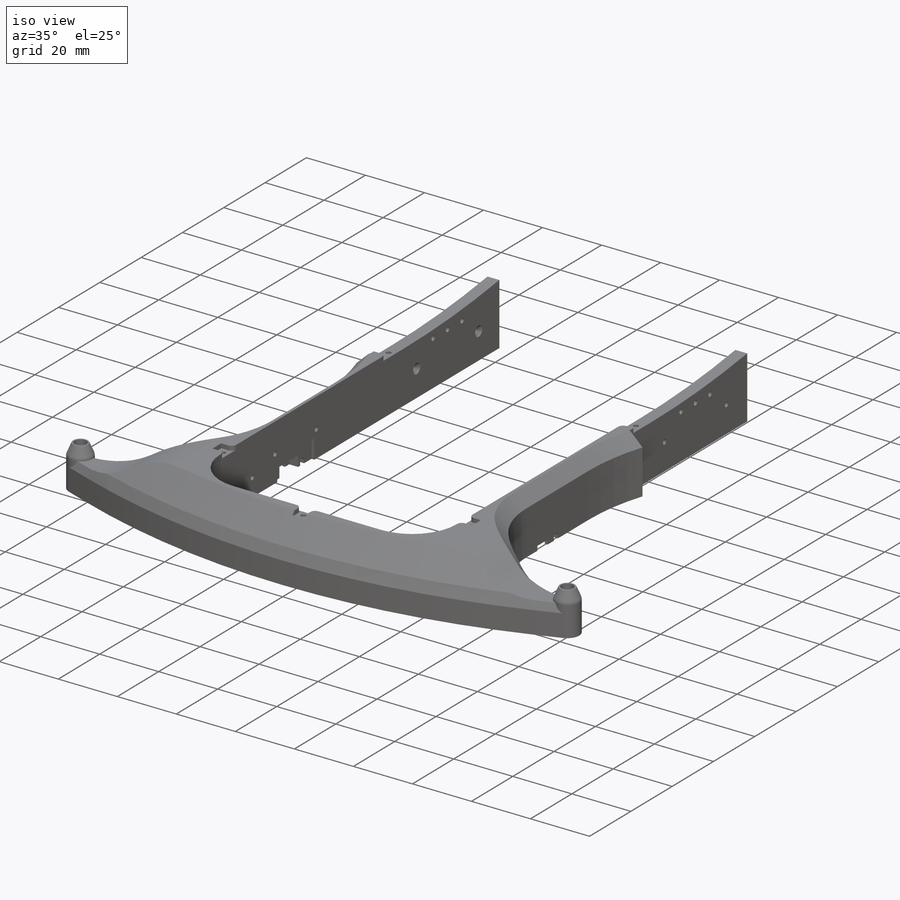
[diagram: iso view]
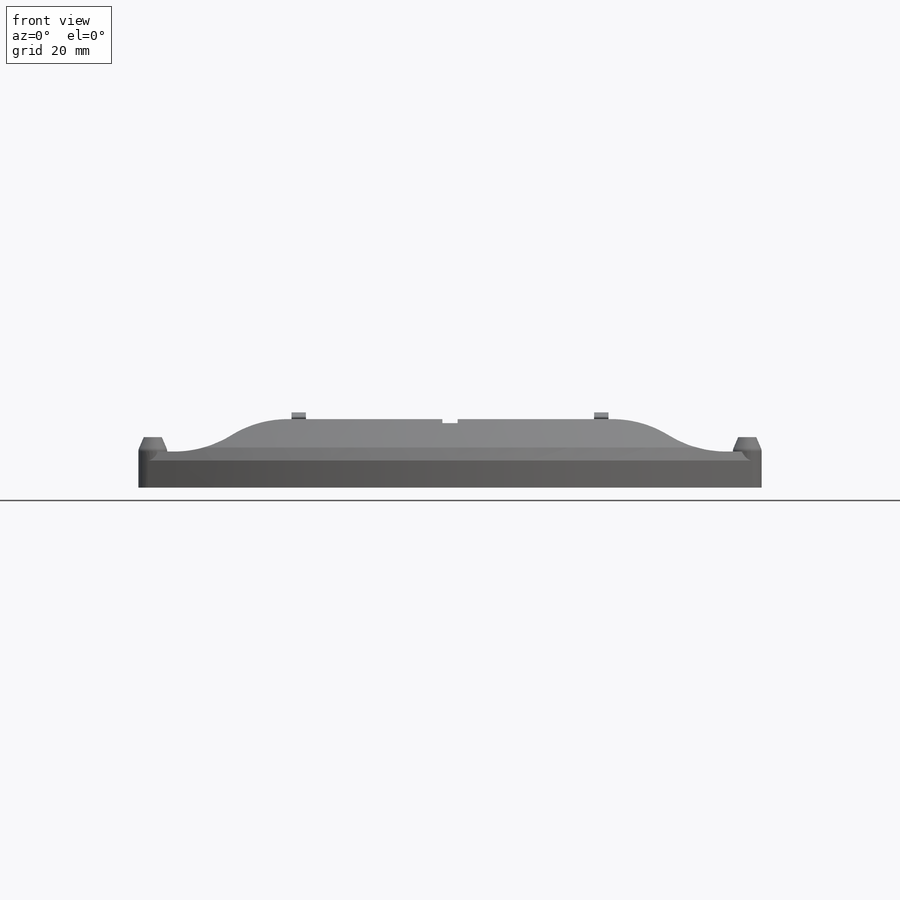
[diagram: front view]
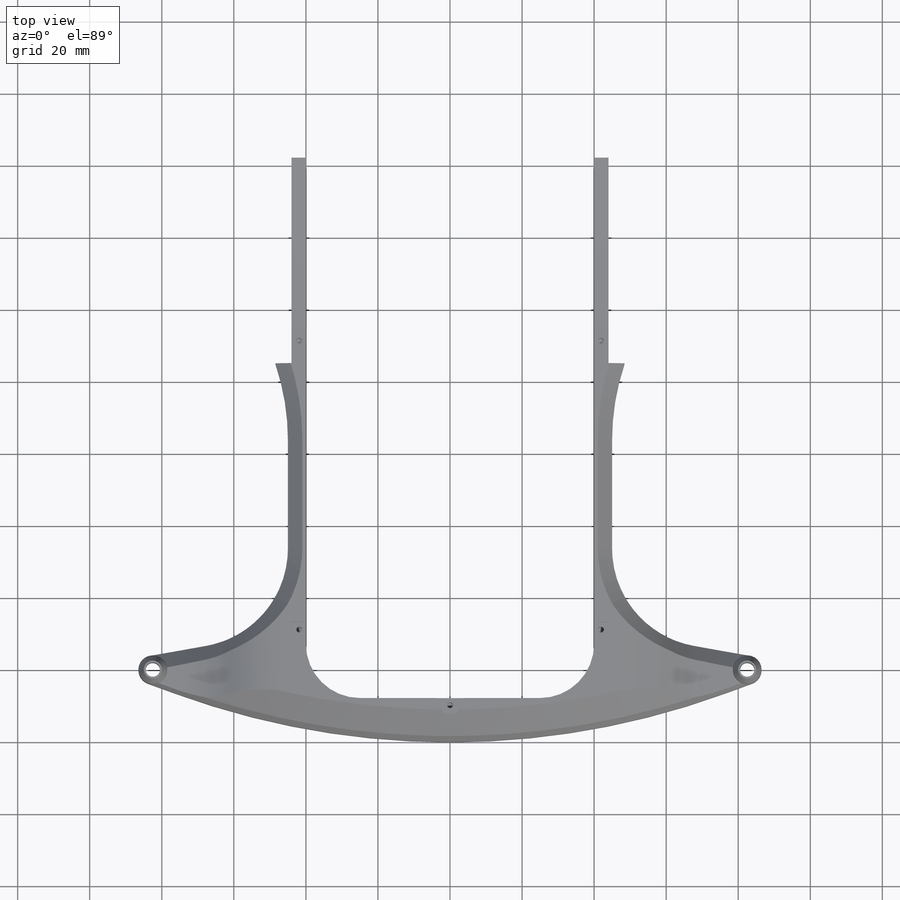
[diagram: top view]
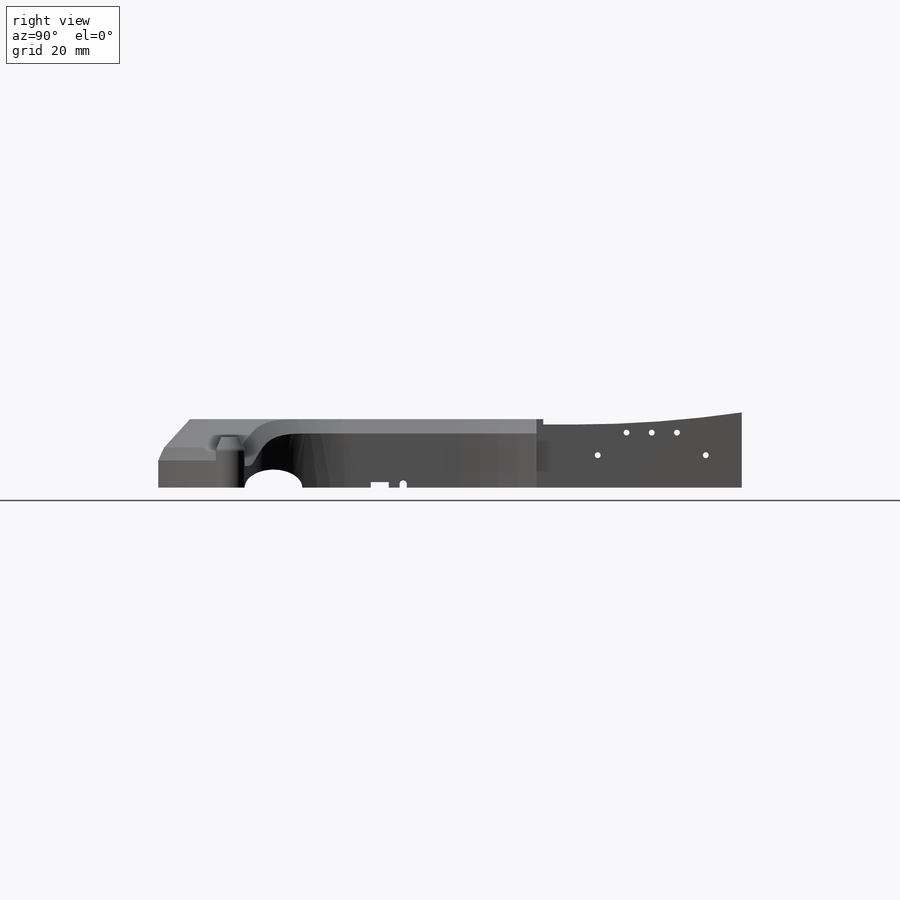
[diagram: right view]
SOLIDWORKS PART (.sldprt)
format: sldprt  version: not decoded by parser v0  size: 1,715,712 bytes
history: native  units: mm
features: sketch x22, cut_extrude x7, plane x4, extrude x4, hole x4, chamfer x3, material x1, sweep x1, cut_revolve x1, fillet x1, mirror x1 (+9 scaffold rows collapsed)
feature tree (58):
  scaffold x9  (default folders/planes/origin — collapsed)
  material  "PVC hart"
  plane  "Ebene vorne"
  plane  "Ebene oben"
  plane  "Ebene rechts"
  sketch  "Skizze5"  dims[c1.D1=4.0mm c1.D2=8.0mm c1.D6=5.0mm c1.D7=15.0mm c1.D13=15.0mm c1.D3=12.0mm c1.D4=12.0mm c1.D5=72.5mm c2.D3=66.0mm c2.D4=12.0mm c2.D6=10.0deg c3.D3=10.0deg c3.D4=20.0mm c3.D5=82.5mm c3.D6=75.0mm c3.D8=12.0mm c3.D9=~28.563975mm c4.D9=7.0deg c4.D10=45.0mm c4.D11=~14.659178mm c5.D11=10.0deg c5.D3=20.0deg c5.D6=~60.891529mm c6.D6=17.0deg c6.D9=75.0mm c6.D12=15.0mm c6.D13=~6.531382mm c6.D7=7.0mm c7.D6=37.5mm c7.D9=~58.244213mm c8.D9=17.0deg c8.D6=5.0mm]
  extrude  "Aufsatz-Linear austragen3"  Depth=19mm
  sketch  "Skizze10"  dims[D1=8.0mm]
  sketch  "Skizze11"  dims[D1=7.5mm D2=5.0mm D3=13.0mm]
  sweep  "Schnitt-Austragung3"
  sketch  "Skizze7"  dims[c1.D1=20.0mm c1.D2=10.0mm c1.D3=20.0mm c2.D1=20.0mm c2.D2=10.0mm c2.D3=20.0mm]
  cut_extrude  "Schnitt-Linear austragen1"  [1 undecoded]
  extrude  "Aufsatz-Linear austragen4"  [1 undecoded]
  sketch  "Skizze5<3>"  dims[D1=14.0mm]
  sketch  "Skizze13"  dims[c1.D4=2.0mm c1.D1=5.0mm c1.D2=10.0mm c1.D3=0.1mm c2.D4=~3.174926mm c3.D4=70.0deg]
  cut_revolve  "Schnitt-Rotation1"  Angle=360deg
  chamfer  "Fase1"  Distance=1.5mm Angle=70deg
  chamfer  "Fase4"  Distance=4mm Angle=45deg
  chamfer  "Fase5"  Distance=8.6mm
  sketch  "Skizze12"  dims[c1.D2=10.0mm c1.D1=15.0mm c1.D3=16.0mm c1.D4=10.0mm c2.D1=12.0mm]
  cut_extrude  "Schnitt-Linear austragen2"  [1 undecoded]
  sketch  "Skizze18"  dims[c1.D1=89.9mm c1.D2=3.0mm c1.D3=4.2mm c1.D4=2.1mm c1.D5=4.2mm c2.D2=19.0mm c2.D6=55.1mm c2.D1=55.1mm]
  cut_extrude  "Schnitt-Linear austragen3"  Depth=1.5mm
  fillet  "Verrundung1"  Radius=1.6mm
  sketch  "Skizze16"
  extrude  "Aufsatz-Linear austragen5"  [1 undecoded]
  sketch  "Skizze35"  dims[c1.D6=2.5mm c1.D7=~0.824122mm c1.D1=9.0mm c1.D2=7.0mm c1.D3=18.0mm c1.D4=13.0mm c1.D5=2.5mm c2.D7=2.0mm c2.D8=3.0mm c2.D9=5.0mm c2.D6=2.0mm c3.D7=2.0mm c3.D10=2.0mm c3.D11=100.5mm]
  cut_extrude  "Schnitt-Linear austragen8"  [1 undecoded]
  sketch  "Skizze35<5>"  dims[D1=1.0mm]
  cut_extrude  "Schnitt-Linear austragen6"  Depth=3mm
  cut_extrude  "Schnitt-Linear austragen10"  [1 undecoded]
  sketch  "Skizze35<7>"
  mirror  "Spiegeln1"
  hole  "Formsenkung für M3 Senkschraube mit Innensechskant1"  Diameter=1.6mm Depth=12mm
  sketch  "Skizze19"
  sketch  "Skizze20"  dims[Bohrerdurchmesser=1.6mm Bohrungstiefe=12.0mm Senkdurchmesser (Oben)=3.8mm Senkwinkel (Oben)=90.0deg Spitzenwinkel=118.0deg]
  hole  "Formsenkung für M3 Senkschraube mit Innensechskant2"  Diameter=1.6mm Depth=6mm
  sketch  "Skizze26"  dims[D1=18.0mm D2=30.0mm D3=10.0mm]
  sketch  "Skizze27"  dims[Bohrerdurchmesser=1.6mm Bohrungstiefe=6.0mm Senkdurchmesser (Oben)=3.5mm Senkwinkel (Oben)=90.0deg Spitzenwinkel=118.0deg]
  hole  "Formsenkung für M3 Senkschraube mit Innensechskant3"  Diameter=1.6mm Depth=6mm
  sketch  "Skizze28"  dims[D1=18.0mm D2=30.0mm D3=10.0mm]
  sketch  "Skizze29"  dims[Bohrerdurchmesser=1.6mm Bohrungstiefe=6.0mm Senkdurchmesser (Oben)=3.5mm Senkwinkel (Oben)=90.0deg Spitzenwinkel=118.0deg]
  sketch  "Skizze30"  dims[c1.D1=1.6mm c1.D4=1.6mm c1.D7=1.6mm c1.D2=6.0mm c1.D3=18.0mm c2.D4=4.0mm c2.D3=2.25mm c2.D5=20.0mm c2.D6=18.0mm c2.D2=14.0mm c3.D6=10.0mm c3.D8=6.0mm c3.D9=2.5mm]
  cut_extrude  "Schnitt-Linear austragen4"  [1 undecoded]
  hole  "Formsenkung für M3 Senkschraube mit Innensechskant5"  Diameter=1.6mm Depth=8mm
  sketch  "Skizze33"  dims[D1=12.0mm D2=24.0mm D3=40.0mm]
  sketch  "Skizze34"  dims[Bohrerdurchmesser=1.6mm Bohrungstiefe=8.0mm Senkdurchmesser (Oben)=3.5mm Senkwinkel (Oben)=90.0deg Spitzenwinkel=118.0deg]
  plane  "Schalter"
  sketch  "Skizze36"  dims[D1=20.0mm D3=30.0mm D2=13.0mm]
  extrude  "Druck-Ohren"  Depth=1mm
decode coverage: 32 of 44 modeling features carry decoded parameters
note: ~ marks probable driven/reference dimensions
note: 7 parameter values undecoded
summary: no parameter record found for 7 features; Diameter pulled from absorbed wizard sketch
note: suppression state not decoded; provenance and decode notes live in map.json
